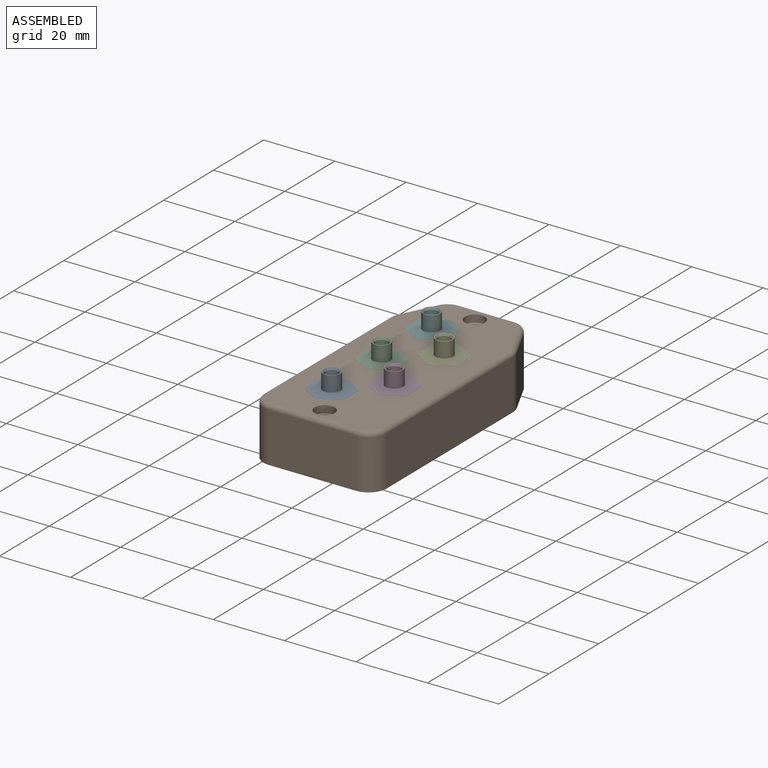
[diagram: assembled view]
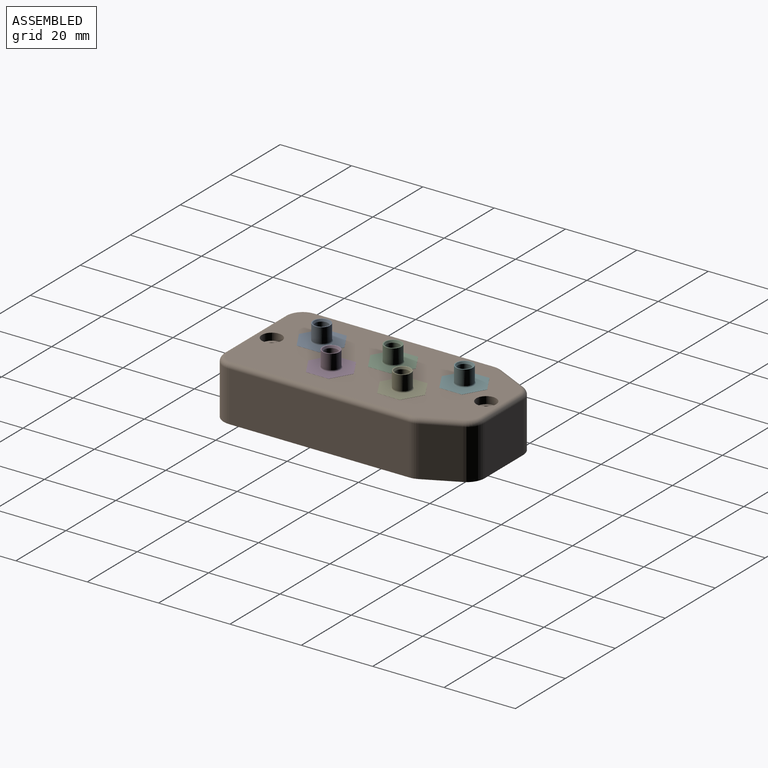
[diagram: assembled view, second angle]
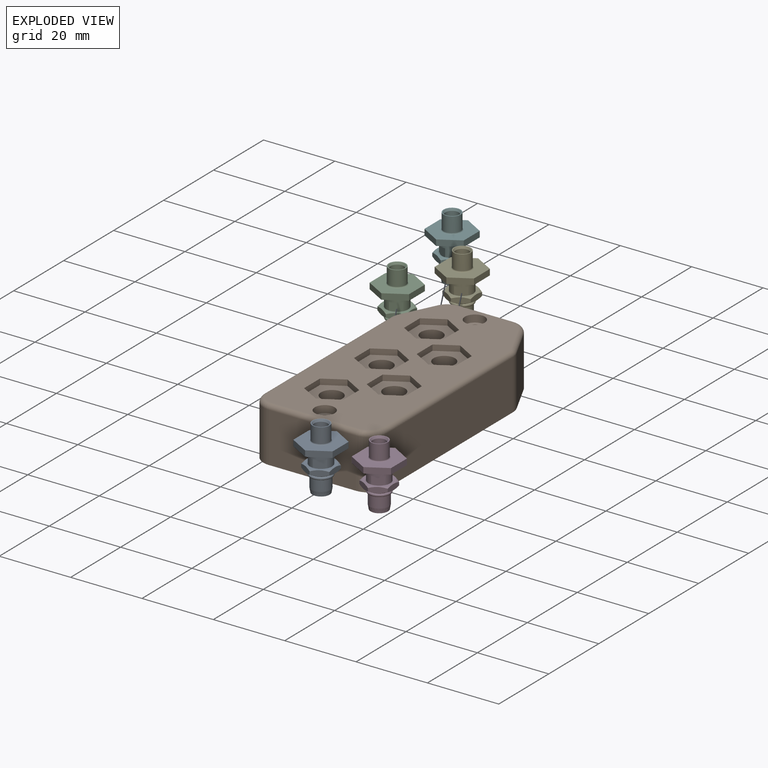
[diagram: exploded view]
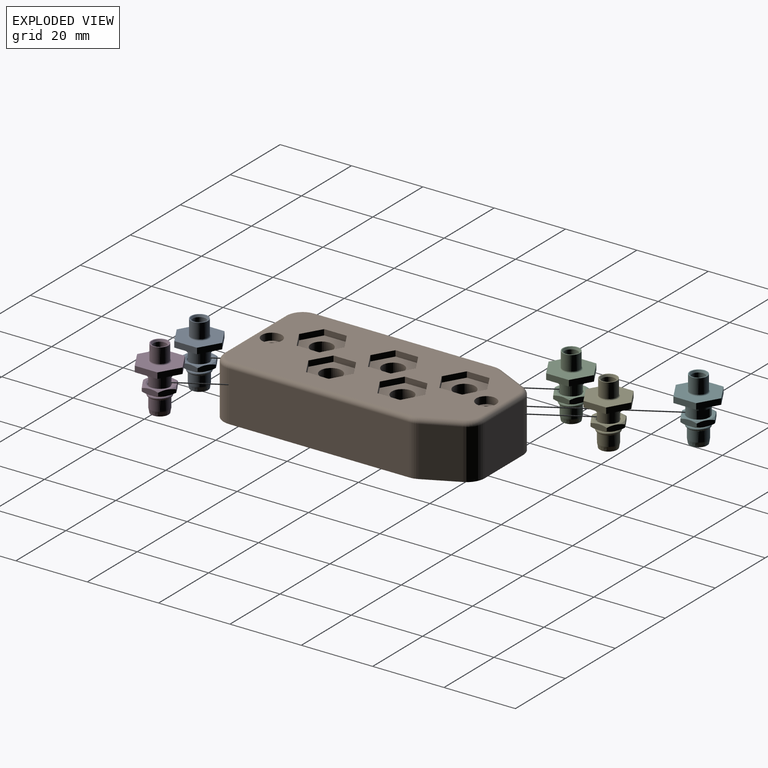
[diagram: exploded view, second angle]
ASSEMBLY  parts=6 mates=5
PART A: 94 faces, bbox 17.9x13.1x11.4 mm
  f0: plane 0.3x0.3mm, normal (1,0,0), area 0.1mm2, adj f2
  f1: revolved ~6.18x6.18mm, area 28.5mm2, adj f3,f15
  f2: cone r=0.46mm half-angle=30deg, axis (-1,0,0), area 1.2mm2, adj f0,f4
  f3: cylinder r=2.41mm len=4.83mm, axis (1,0,0), area 2.8mm2, adj f1,f5
  f4: cylinder r=0.46mm len=1.77mm, axis (-1,0,0), area 5.1mm2, adj f2,f6
  f5: plane 5.33x5.33mm, normal (-1,0,0), area 4mm2, adj f3,f7
  f6: plane 1.78x1.78mm, normal (1,0,0), area 1.8mm2, adj f4,f9
  f7: cylinder r=2.66mm len=5.33mm, axis (1,0,0), area 49.2mm2, adj f5,f8
  f8: cone r=2.66mm half-angle=10deg, axis (-1,0,0), area 20.8mm2, adj f7,f10
  f9: cylinder r=0.89mm len=3.15mm, axis (1,0,0), area 17.6mm2, adj f6,f11
  f10: plane 4.88x4.88mm, normal (1,0,0), area 5.5mm2, adj f8,f12
  f11: plane 4.09x4.09mm, normal (1,0,0), area 10.6mm2, adj f9,f12
  f12: cylinder r=2.04mm len=6.45mm, axis (1,0,0), area 82.9mm2, adj f10,f11
  f13: cylinder r=0.61mm len=1.82mm, axis (-1,0,0), area 0.5mm2, adj f17,f18,f19,f32
  f14: cylinder r=0.61mm len=1.82mm, axis (-1,0,0), area 0.5mm2, adj f20,f21,f22,f33
  f15: cone r=3.05mm half-angle=60deg, axis (-1,0,0), area 7.2mm2, adj f1,f24
  f16: cylinder r=0.91mm len=0.16mm, axis (0,0,-1), area 0mm2, adj f25
  f17: plane 1.9x0.15mm, normal (0,1,0), area 0.2mm2, adj f13,f18,f32,f36,f40,f41,f55
  f18: plane 0.25x0.13mm, normal (-1,0,0), area 0mm2, adj f13,f17,f19,f36
  f19: plane 1.9x0.15mm, normal (0,-1,0), area 0.2mm2, adj f13,f18,f32,f36,f40,f48,f55
  f20: plane 1.9x0.15mm, normal (0,0,-1), area 0.2mm2, adj f14,f21,f33,f36,f42,f43,f55
  f21: plane 0.25x0.13mm, normal (-1,0,0), area 0mm2, adj f14,f20,f22,f36
  f22: plane 1.9x0.15mm, normal (0,0,1), area 0.2mm2, adj f14,f21,f33,f36,f41,f42,f55
  f23: cylinder r=0.61mm len=1.82mm, axis (-1,0,0), area 0.5mm2, adj f26,f27,f28,f34
  f24: cylinder r=3.05mm len=6.1mm, axis (1,0,0), area 11.4mm2, adj f15,f30,f31
  f25: cone r=0.49mm half-angle=60deg, axis (-1,0,0), area 0.9mm2, adj f16,f36
  f26: plane 1.9x0.15mm, normal (0,-1,0), area 0.2mm2, adj f23,f27,f34,f36,f44,f45,f55
  f27: plane 0.25x0.13mm, normal (-1,0,0), area 0mm2, adj f23,f26,f28,f36
  f28: plane 1.9x0.15mm, normal (0,1,0), area 0.2mm2, adj f23,f27,f34,f36,f43,f44,f55
  f29: plane 1.9x0.15mm, normal (0,0,-1), area 0.2mm2, adj f35,f36,f37,f38,f45,f46,f55
  f30: cone r=3.23mm half-angle=60deg, axis (1,0,0), area 2mm2, adj f24,f31,f39
  f31: cone r=3.23mm half-angle=60deg, axis (1,0,0), area 2mm2, adj f24,f30,f39
  f32: plane 0.25x0.04mm, normal (-1,0,0), area 0mm2, adj f13,f17,f19,f40
  f33: plane 0.25x0.04mm, normal (-1,0,0), area 0mm2, adj f14,f20,f22,f42
  f34: plane 0.25x0.04mm, normal (-1,0,0), area 0mm2, adj f23,f26,f28,f44
  f35: plane 0.25x0.13mm, normal (-1,0,0), area 0mm2, adj f29,f36,f38,f47
  f36: cylinder r=0.49mm len=2.73mm, axis (-1,0,0), area 6.6mm2, adj f17,f18,f19,f20,f21,f22,f25,f26
  f37: plane 0.25x0.04mm, normal (-1,0,0), area 0mm2, adj f29,f38,f46,f47
  f38: cylinder r=0.61mm len=1.82mm, axis (-1,0,0), area 0.5mm2, adj f29,f35,f37,f47
  f39: plane 7.93x7.93mm, normal (1,0,0), area 16.6mm2, adj f30,f31,f49,f50,f51,f52,f53,f54
  f40: cylinder r=0.63mm len=0.25mm, axis (1,0,0), area 0mm2, adj f17,f19,f32,f55
  f41: cone r=0.56mm half-angle=45deg, axis (-1,0,0), area 0.1mm2, adj f17,f22,f36,f55
  f42: cylinder r=0.63mm len=0.25mm, axis (1,0,0), area 0mm2, adj f20,f22,f33,f55
  f43: cone r=0.56mm half-angle=45deg, axis (-1,0,0), area 0.1mm2, adj f20,f28,f36,f55
  f44: cylinder r=0.63mm len=0.25mm, axis (1,0,0), area 0mm2, adj f26,f28,f34,f55
  f45: cone r=0.56mm half-angle=45deg, axis (-1,0,0), area 0.1mm2, adj f26,f29,f36,f55
  f46: cylinder r=0.63mm len=0.25mm, axis (1,0,0), area 0mm2, adj f29,f37,f47,f55
  f47: plane 1.9x0.15mm, normal (0,0,1), area 0.2mm2, adj f35,f36,f37,f38,f46,f48,f55
  f48: cone r=0.56mm half-angle=45deg, axis (-1,0,0), area 0.1mm2, adj f19,f36,f47,f55
  f49: cone r=4.58mm half-angle=60deg, axis (-1,0,0), area 1.5mm2, adj f39,f56,f57
  f50: cone r=4.58mm half-angle=60deg, axis (-1,0,0), area 1.5mm2, adj f39,f57,f58
  f51: cone r=4.58mm half-angle=60deg, axis (-1,0,0), area 1.5mm2, adj f39,f58,f59
  f52: cone r=4.58mm half-angle=60deg, axis (-1,0,0), area 1.5mm2, adj f39,f59,f60
  f53: cone r=4.58mm half-angle=60deg, axis (-1,0,0), area 1.5mm2, adj f39,f56,f61
  f54: cone r=4.58mm half-angle=60deg, axis (-1,0,0), area 1.5mm2, adj f39,f60,f61
  f55: plane 3.08x3.08mm, normal (-1,0,0), area 6.4mm2, adj f17,f19,f20,f22,f26,f28,f29,f40
  f56: plane 4.95x1.98mm, normal (0,0,-1), area 6.2mm2, adj f49,f53,f57,f61,f63,f64
  f57: plane 4.34x2.67mm, normal (0,-0.87,-0.5), area 6.2mm2, adj f49,f50,f56,f58,f64,f65
  f58: plane 4.34x2.67mm, normal (0,-0.87,0.5), area 6.2mm2, adj f39,f50,f51,f57,f59,f65,f66,f72
  f59: plane 4.95x1.98mm, normal (0,0,1), area 6.2mm2, adj f51,f52,f58,f60,f66,f67
  f60: plane 4.34x2.67mm, normal (0,0.87,0.5), area 6.2mm2, adj f52,f54,f59,f61,f67,f68
  f61: plane 4.34x2.67mm, normal (0,0.87,-0.5), area 6.2mm2, adj f39,f53,f54,f56,f60,f63,f68,f72
  f62: cylinder r=1.54mm len=3.08mm, axis (1,0,0), area 2.9mm2, adj f55,f69
  f63: cone r=4.58mm half-angle=59deg, axis (1,0,0), area 1.6mm2, adj f56,f61,f72
  f64: cone r=4.58mm half-angle=59deg, axis (1,0,0), area 1.6mm2, adj f56,f57,f72
  f65: cone r=4.58mm half-angle=59deg, axis (1,0,0), area 1.5mm2, adj f57,f58,f72
  f66: cone r=4.58mm half-angle=59deg, axis (1,0,0), area 1.6mm2, adj f58,f59,f72
  f67: cone r=4.58mm half-angle=59deg, axis (1,0,0), area 1.6mm2, adj f59,f60,f72
  f68: cone r=4.58mm half-angle=59deg, axis (1,0,0), area 1.5mm2, adj f60,f61,f72
  f69: plane 3.68x3.68mm, normal (-1,0,0), area 3.2mm2, adj f62,f75
  f70: cylinder r=2.82mm len=2.43mm, axis (-1,0,0), area 1.6mm2, adj f74,f78,f80
  f71: plane 2.43x0.28mm, normal (-1,0,0), area 0.5mm2, adj f73,f77
  f72: plane 7.93x7.93mm, normal (-1,0,0), area 16.6mm2, adj f58,f61,f63,f64,f65,f66,f67,f68
  f73: cylinder r=2.82mm len=2.43mm, axis (-1,0,0), area 1.6mm2, adj f71,f77,f78
  f74: plane 2.43x0.28mm, normal (-1,0,0), area 0.5mm2, adj f70,f80
  f75: cylinder r=1.84mm len=4.71mm, axis (1,0,0), area 54.4mm2, adj f69,f81
  f76: plane 3.34x0.5mm, normal (1,0,0), area 1.1mm2, adj f77,f82
  f77: plane 3.36x3.02mm, normal (0,0,-1), area 9.4mm2, adj f71,f73,f76,f78,f82
  f78: cone r=3.23mm half-angle=60deg, axis (-1,0,0), area 5.6mm2, adj f70,f72,f73,f77,f80,f82
  f79: plane 3.34x0.5mm, normal (1,0,0), area 1.1mm2, adj f80,f82
  f80: plane 3.36x3.02mm, normal (0,0,1), area 9.4mm2, adj f70,f74,f78,f79,f82
  f81: cone r=2.15mm half-angle=30deg, axis (-1,0,0), area 7.8mm2, adj f75,f83
  f82: cylinder r=3.05mm len=6.1mm, axis (1,0,0), area 62.4mm2, adj f76,f77,f78,f79,f80,f84
  f83: plane 4.8x4.8mm, normal (-1,0,0), area 3.6mm2, adj f81,f85
  f84: plane 12.73x11.03mm, normal (1,0,0), area 76.1mm2, adj f82,f86,f87,f88,f89,f90,f91
  f85: cylinder r=2.4mm len=4.8mm, axis (1,0,0), area 63.3mm2, adj f83,f92
  f86: plane 5.51x3.18mm, normal (0,0.87,0.5), area 10.5mm2, adj f84,f87,f91,f93
  f87: plane 6.37x1.65mm, normal (0,0,1), area 10.5mm2, adj f84,f86,f88,f93
  f88: plane 5.51x3.18mm, normal (0,-0.87,0.5), area 10.5mm2, adj f84,f87,f89,f93
  f89: plane 5.51x3.18mm, normal (0,-0.87,-0.5), area 10.5mm2, adj f84,f88,f90,f93
  f90: plane 6.37x1.65mm, normal (0,0,-1), area 10.5mm2, adj f84,f89,f91,f93
  f91: plane 5.51x3.18mm, normal (0,0.87,-0.5), area 10.5mm2, adj f84,f86,f90,f93
  f92: revolved ~5.38x5.38mm, area 7.4mm2, adj f85,f93
  f93: plane 12.73x11.03mm, normal (-1,0,0), area 82.3mm2, adj f86,f87,f88,f89,f90,f91,f92
PART B: 87 faces, bbox 35.4x70.8x15.2 mm
  f0: plane 67.46x32mm, normal (0,0,1), area 1504.3mm2, adj f31,f32,f33,f34,f35,f36,f37,f38
  f1: cylinder r=1.78mm len=13.21mm, axis (0,0,-1), area 147.6mm2, adj f9,f46
  f2: cylinder r=1.78mm len=13.21mm, axis (0,0,-1), area 147.6mm2, adj f9,f44
  f3: plane 24.38x13.97mm, normal (0,-1,0), area 340.6mm2, adj f9,f25,f30,f40
  f4: plane 50.52x13.97mm, normal (1,0,0), area 705.7mm2, adj f9,f25,f26,f41
  f5: plane 13.97x9.32mm, normal (0.9,0.44,0), area 145mm2, adj f9,f26,f27,f37
  f6: plane 15.25x13.97mm, normal (0,1,0), area 213.1mm2, adj f9,f27,f28,f33
  f7: plane 13.97x9.32mm, normal (-0.9,0.44,0), area 145mm2, adj f9,f28,f29,f32
  f8: plane 50.52x13.97mm, normal (-1,0,0), area 705.7mm2, adj f9,f29,f30,f36
  f9: plane 70x34.54mm, normal (0,0,-1), area 469.1mm2, adj f1,f2,f3,f4,f5,f6,f7,f8
  f10: plane 10.92x3.65mm, normal (0,-1,0), area 39.9mm2, adj f9,f11,f23,f24
  f11: cylinder r=2.67mm len=10.92mm, axis (0,0,-1), area 45.8mm2, adj f9,f10,f12,f24
  f12: cylinder r=3.05mm len=10.92mm, axis (0,0,-1), area 104.6mm2, adj f9,f11,f13,f24
  f13: cylinder r=2.67mm len=10.92mm, axis (0,0,-1), area 45.8mm2, adj f9,f12,f14,f24
  f14: plane 10.92x3.65mm, normal (0,-1,0), area 39.9mm2, adj f9,f13,f15,f24
  f15: plane 11.47x10.92mm, normal (-0.9,-0.44,0), area 139.5mm2, adj f9,f14,f16,f24
  f16: plane 53.96x10.92mm, normal (-1,0,0), area 589.4mm2, adj f9,f15,f17,f24
  f17: plane 10.92x9.27mm, normal (0,1,0), area 101.3mm2, adj f9,f16,f18,f24
  f18: cylinder r=2.67mm len=10.92mm, axis (0,0,-1), area 45.8mm2, adj f9,f17,f19,f24
  f19: cylinder r=3.05mm len=10.92mm, axis (0,0,-1), area 104.6mm2, adj f9,f18,f20,f24
  f20: cylinder r=2.67mm len=10.92mm, axis (0,0,-1), area 45.8mm2, adj f9,f19,f21,f24
  f21: plane 10.92x9.27mm, normal (0,1,0), area 101.3mm2, adj f9,f20,f22,f24
  f22: plane 53.96x10.92mm, normal (1,0,0), area 589.4mm2, adj f9,f21,f23,f24
  f23: plane 11.47x10.92mm, normal (0.9,-0.44,0), area 139.5mm2, adj f9,f10,f22,f24
  f24: plane 65.43x29.97mm, normal (0,0,-1), area 1687.4mm2, adj f10,f11,f12,f13,f14,f15,f16,f17
  f25: cylinder r=5.08mm len=13.97mm, axis (0,0,-1), area 111.5mm2, adj f3,f4,f9,f42
  f26: cylinder r=5.08mm len=13.97mm, axis (0,0,-1), area 32.3mm2, adj f4,f5,f9,f39
  f27: cylinder r=5.08mm len=13.97mm, axis (0,0,-1), area 79.2mm2, adj f5,f6,f9,f35
  f28: cylinder r=5.08mm len=13.97mm, axis (0,0,-1), area 79.2mm2, adj f6,f7,f9,f31
  f29: cylinder r=5.08mm len=13.97mm, axis (0,0,-1), area 32.3mm2, adj f7,f8,f9,f34
  f30: cylinder r=5.08mm len=13.97mm, axis (0,0,-1), area 111.5mm2, adj f3,f8,f9,f38
  f31: torus R=3.81mm, axis (0,0,1), area 10.3mm2, adj f0,f28,f32,f33
  f32: cylinder r=1.27mm len=9.88mm, axis (0.44,0.9,0), area 20.7mm2, adj f0,f7,f31,f34
  f33: cylinder r=1.27mm len=15.25mm, axis (1,0,0), area 30.4mm2, adj f0,f6,f31,f35
  f34: torus R=3.81mm, axis (0,0,1), area 4.2mm2, adj f0,f29,f32,f36
  f35: torus R=3.81mm, axis (0,0,1), area 10.3mm2, adj f0,f27,f33,f37
  f36: cylinder r=1.27mm len=50.52mm, axis (0,1,0), area 100.8mm2, adj f0,f8,f34,f38
  f37: cylinder r=1.27mm len=9.88mm, axis (0.44,-0.9,0), area 20.7mm2, adj f0,f5,f35,f39
  f38: torus R=3.81mm, axis (0,0,1), area 14.5mm2, adj f0,f30,f36,f40
  f39: torus R=3.81mm, axis (0,0,1), area 4.2mm2, adj f0,f26,f37,f41
  f40: cylinder r=1.27mm len=24.38mm, axis (-1,0,0), area 48.6mm2, adj f0,f3,f38,f42
  f41: cylinder r=1.27mm len=50.52mm, axis (0,-1,0), area 100.8mm2, adj f0,f4,f39,f42
  f42: torus R=3.81mm, axis (0,0,1), area 14.5mm2, adj f0,f25,f40,f41
  f43: cylinder r=2.79mm len=5.59mm, axis (0,0,1), area 35.7mm2, adj f0,f44
  f44: plane 5.59x5.59mm, normal (0,0,1), area 14.6mm2, adj f2,f43
  f45: cylinder r=2.79mm len=5.59mm, axis (0,0,1), area 35.7mm2, adj f0,f46
  f46: plane 5.59x5.59mm, normal (0,0,1), area 14.6mm2, adj f1,f45
  f47: plane 5.5x3.18mm, normal (0.5,0.87,0), area 10.2mm2, adj f0,f48,f52,f53
  f48: plane 5.5x3.18mm, normal (-0.5,0.87,0), area 10.2mm2, adj f0,f47,f49,f53
  f49: plane 6.35x1.6mm, normal (-1,0,0), area 10.2mm2, adj f0,f48,f50,f53
  f50: plane 5.5x3.18mm, normal (-0.5,-0.87,0), area 10.2mm2, adj f0,f49,f51,f53
  f51: plane 5.5x3.18mm, normal (0.5,-0.87,0), area 10.2mm2, adj f0,f50,f52,f53
  f52: plane 6.35x1.6mm, normal (1,0,0), area 10.2mm2, adj f0,f47,f51,f53
  f53: plane 12.7x11mm, normal (0,0,1), area 76.5mm2, adj f47,f48,f49,f50,f51,f52,f85
  f54: plane 5.5x3.18mm, normal (-0.5,-0.87,0), area 10.2mm2, adj f0,f55,f59,f60
  f55: plane 5.5x3.18mm, normal (0.5,-0.87,0), area 10.2mm2, adj f0,f54,f56,f60
  f56: plane 6.35x1.6mm, normal (1,0,0), area 10.2mm2, adj f0,f55,f57,f60
  f57: plane 5.5x3.18mm, normal (0.5,0.87,0), area 10.2mm2, adj f0,f56,f58,f60
  f58: plane 5.5x3.18mm, normal (-0.5,0.87,0), area 10.2mm2, adj f0,f57,f59,f60
  f59: plane 6.35x1.6mm, normal (-1,0,0), area 10.2mm2, adj f0,f54,f58,f60
  f60: plane 12.7x11mm, normal (0,0,1), area 76.5mm2, adj f54,f55,f56,f57,f58,f59,f84
  f61: plane 5.5x3.18mm, normal (0.5,0.87,0), area 10.2mm2, adj f0,f62,f66,f67
  f62: plane 5.5x3.18mm, normal (-0.5,0.87,0), area 10.2mm2, adj f0,f61,f63,f67
  f63: plane 6.35x1.6mm, normal (-1,0,0), area 10.2mm2, adj f0,f62,f64,f67
  f64: plane 5.5x3.18mm, normal (-0.5,-0.87,0), area 10.2mm2, adj f0,f63,f65,f67
  f65: plane 5.5x3.18mm, normal (0.5,-0.87,0), area 10.2mm2, adj f0,f64,f66,f67
  f66: plane 6.35x1.6mm, normal (1,0,0), area 10.2mm2, adj f0,f61,f65,f67
  f67: plane 12.7x11mm, normal (0,0,1), area 76.5mm2, adj f61,f62,f63,f64,f65,f66,f86
  f68: plane 5.5x3.18mm, normal (0.5,0.87,0), area 10.2mm2, adj f0,f69,f73,f74
  f69: plane 5.5x3.18mm, normal (-0.5,0.87,0), area 10.2mm2, adj f0,f68,f70,f74
  f70: plane 6.35x1.6mm, normal (-1,0,0), area 10.2mm2, adj f0,f69,f71,f74
  f71: plane 5.5x3.18mm, normal (-0.5,-0.87,0), area 10.2mm2, adj f0,f70,f72,f74
  f72: plane 5.5x3.18mm, normal (0.5,-0.87,0), area 10.2mm2, adj f0,f71,f73,f74
  f73: plane 6.35x1.6mm, normal (1,0,0), area 10.2mm2, adj f0,f68,f72,f74
  f74: plane 12.7x11mm, normal (0,0,1), area 76.5mm2, adj f68,f69,f70,f71,f72,f73,f82
  f75: plane 5.5x3.18mm, normal (-0.5,-0.87,0), area 10.2mm2, adj f0,f76,f80,f81
  f76: plane 5.5x3.18mm, normal (0.5,-0.87,0), area 10.2mm2, adj f0,f75,f77,f81
  f77: plane 6.35x1.6mm, normal (1,0,0), area 10.2mm2, adj f0,f76,f78,f81
  f78: plane 5.5x3.18mm, normal (0.5,0.87,0), area 10.2mm2, adj f0,f77,f79,f81
  f79: plane 5.5x3.18mm, normal (-0.5,0.87,0), area 10.2mm2, adj f0,f78,f80,f81
  f80: plane 6.35x1.6mm, normal (-1,0,0), area 10.2mm2, adj f0,f75,f79,f81
  f81: plane 12.7x11mm, normal (0,0,1), area 76.5mm2, adj f75,f76,f77,f78,f79,f80,f83
  f82: cylinder r=3mm len=6mm, axis (0,0,1), area 51.2mm2, adj f24,f74
  f83: cylinder r=3mm len=6mm, axis (0,0,1), area 51.2mm2, adj f24,f81
  f84: cylinder r=3mm len=6mm, axis (0,0,1), area 51.2mm2, adj f24,f60
  f85: cylinder r=3mm len=6mm, axis (0,0,1), area 51.2mm2, adj f24,f53
  f86: cylinder r=3mm len=6mm, axis (0,0,1), area 51.2mm2, adj f24,f67
PART C: same geometry as A
PART D: same geometry as A
PART E: same geometry as A
PART F: same geometry as A
PLACE A rot(axis=(-0.65,0.38,0.65),138.6deg) t=(10.71,9.19,12.34)mm
PLACE B t=(-1.29,-6.05,10.07)mm fixed
PLACE C rot(axis=(-0.65,0.38,0.65),138.6deg) t=(10.71,29.19,12.34)mm
PLACE D rot(axis=(-0.65,0.38,0.65),138.6deg) t=(21.26,19.19,12.34)mm
PLACE E rot(axis=(-0.65,0.38,0.65),138.6deg) t=(21.26,39.19,12.34)mm
PLACE F rot(axis=(-0.45,0.77,0.45),104.5deg) t=(10.71,49.19,12.34)mm
MATE planar E.f87 <-> B.f76  axis (-0.5,0.87,0) through (18.5,43.97,24.51)mm
MATE planar F.f86 <-> B.f65  axis (-0.5,0.87,0) through (7.96,53.97,24.51)mm
MATE planar C.f87 <-> B.f72  axis (-0.5,0.87,0) through (7.96,33.97,24.51)mm
MATE planar A.f87 <-> B.f51  axis (-0.5,0.87,0) through (7.96,13.97,24.51)mm
MATE planar D.f87 <-> B.f55  axis (-0.5,0.87,0) through (18.5,23.97,24.51)mm
